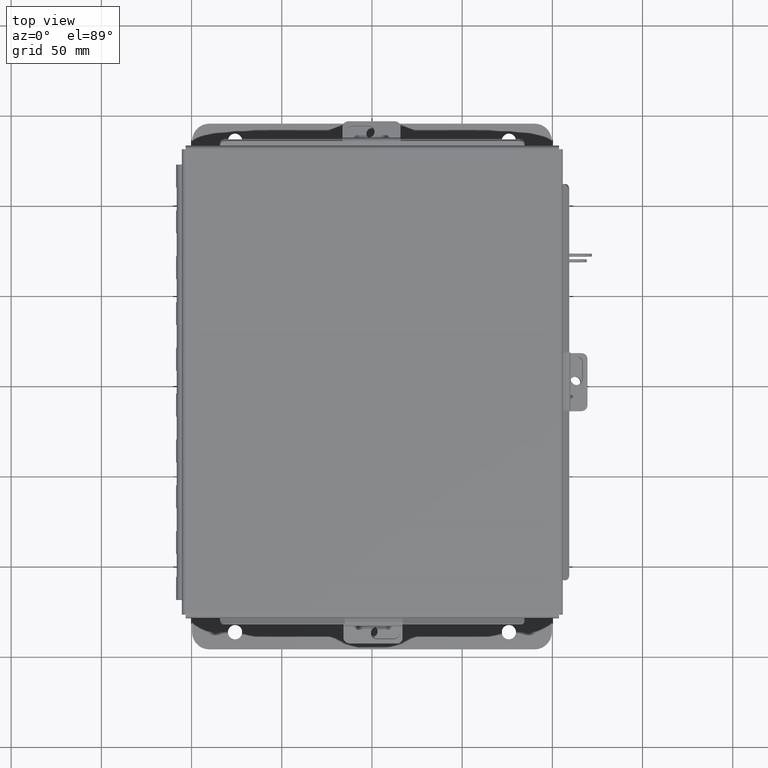
[diagram: clean part render]
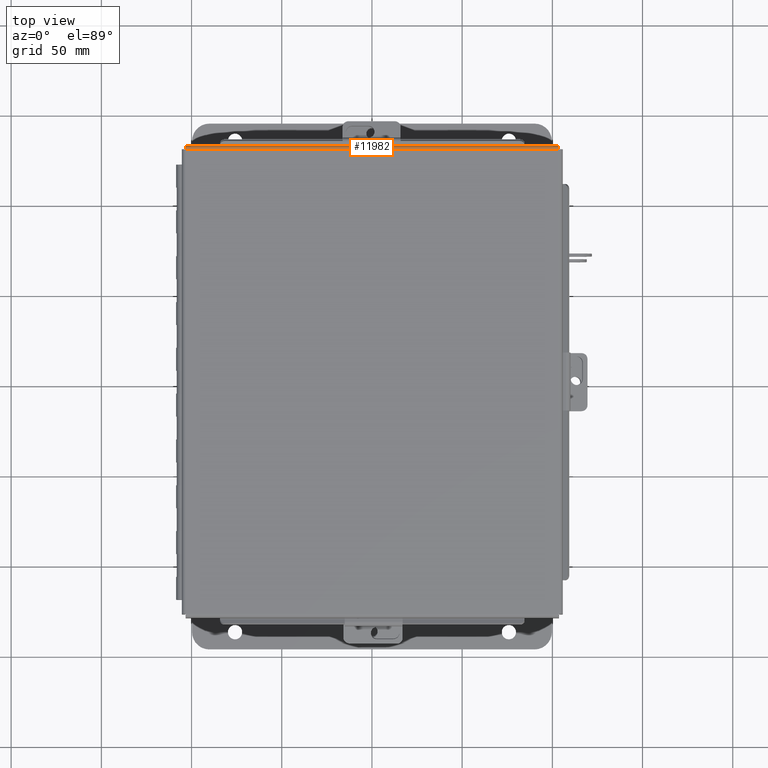
[diagram: same view with one face highlighted and labeled with its STEP entity id]
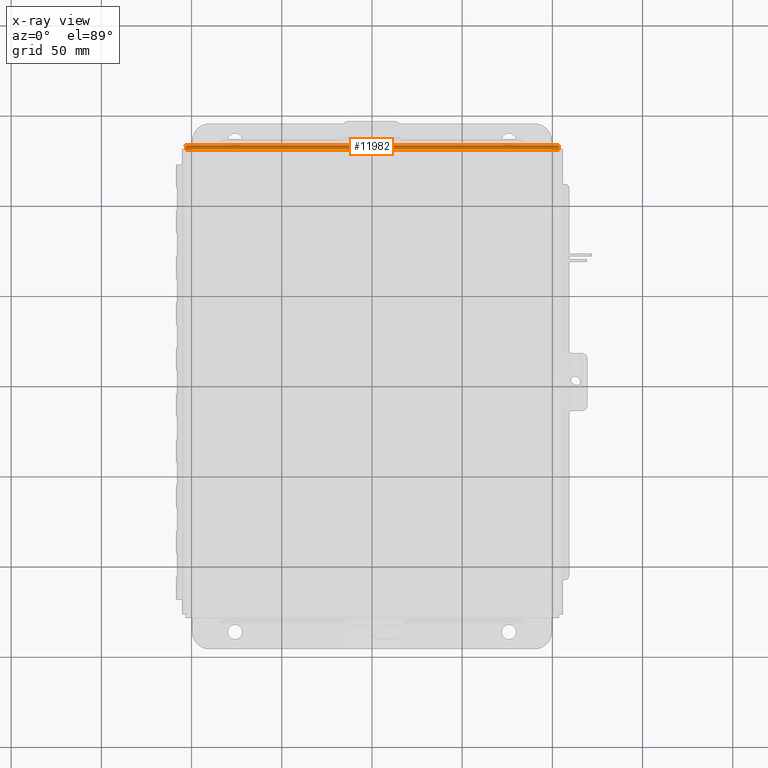
[diagram: x-ray of the same camera — body ghosted, the highlighted face saturated]
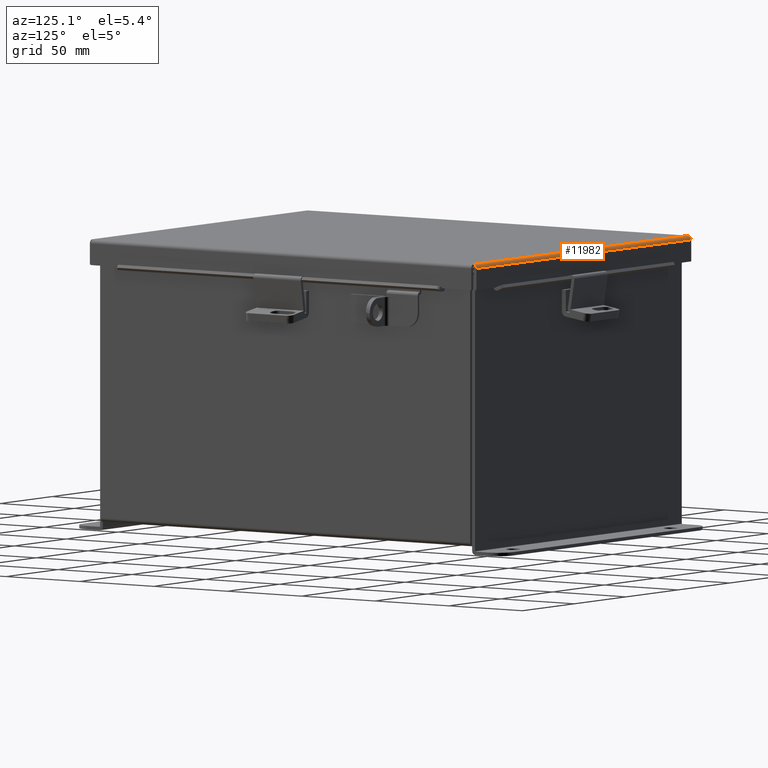
[diagram: same view with one face highlighted and labeled with its STEP entity id]
A machine part, top view. The second image highlights one B-rep face of the part: STEP entity #11982.
The next image is the same camera in x-ray: the body ghosted, the highlighted face saturated — about 0% of this face is hidden behind the body in this view.
A second angle (auxiliary view) of the same face is appended — the face is thin or edge-on in the first view.
In plain terms, the highlighted cylindrical surface (edge-blend (fillet) strip) has radius 2.2276 mm, axis along (1, -0, 0).
Its self-contained STEP definition (entity closure, byte-faithful):
#203 = ORIENTED_EDGE ( 'NONE', *, *, #1217, .F. ) ;
#292 = CARTESIAN_POINT ( 'NONE',  ( -4.074478932188135600, 5.068549999999998300, -0.07469999999999993300 ) ) ;
#777 = CARTESIAN_POINT ( 'NONE',  ( 4.068550000000000100, 5.068549999999998300, -0.07470000000000022500 ) ) ;
#1088 = CARTESIAN_POINT ( 'NONE',  ( 4.072008543776411700, 5.138680782078321100, -0.04089574734180011200 ) ) ;
#1217 = EDGE_CURVE ( 'NONE', #4258, #11282, #6388, .T. ) ;
#1588 = DIRECTION ( 'NONE',  ( 1.000000000000000000, 0.0000000000000000000, 0.0000000000000000000 ) ) ;
#1610 = CYLINDRICAL_SURFACE ( 'NONE', #12042, 0.08770000000000026400 ) ;
#1968 = CARTESIAN_POINT ( 'NONE',  ( 4.068550000000000100, 5.068549999999998300, -0.07470000000000022500 ) ) ;
#2162 = CARTESIAN_POINT ( 'NONE',  ( 4.073490776823446100, 5.153967403743811500, -0.009955289458309054700 ) ) ;
#2438 = EDGE_LOOP ( 'NONE', ( #3299, #5412, #16224, #203 ) ) ;
#2838 = CARTESIAN_POINT ( 'NONE',  ( -4.068550000000000100, 5.068549999999998300, -0.07469999999999993300 ) ) ;
#2987 = CARTESIAN_POINT ( 'NONE',  ( -4.074478932188135600, 5.068549999999998300, 0.01300000000000016400 ) ) ;
#3299 = ORIENTED_EDGE ( 'NONE', *, *, #7926, .F. ) ;
#3550 = CARTESIAN_POINT ( 'NONE',  ( 4.074478932188135600, 5.156249999999999100, 0.01299999999999977400 ) ) ;
#4215 = CARTESIAN_POINT ( 'NONE',  ( 4.074478932188135600, 5.156249999999999100, 0.01299999999999977400 ) ) ;
#4258 = VERTEX_POINT ( 'NONE', #1968 ) ;
#4604 = CARTESIAN_POINT ( 'NONE',  ( -4.072502621458756500, 5.145181066258666100, -0.03116738457852799900 ) ) ;
#4669 = CARTESIAN_POINT ( 'NONE',  ( 4.072502621458756500, 5.145181066258666100, -0.03116738457852800300 ) ) ;
#5412 = ORIENTED_EDGE ( 'NONE', *, *, #8841, .F. ) ;
#5536 = DIRECTION ( 'NONE',  ( -1.000000000000000000, -0.0000000000000000000, -0.0000000000000000000 ) ) ;
#5864 = CARTESIAN_POINT ( 'NONE',  ( -4.071020388411723100, 5.122445747341797300, -0.05713078207832041800 ) ) ;
#5924 = B_SPLINE_CURVE_WITH_KNOTS ( 'NONE', 3,
 ( #9607, #16019, #12233, #4604, #13506, #5864, #14812, #7174, #16084, #8436 ),
 .UNSPECIFIED., .F., .F.,
 ( 4, 2, 2, 2, 4 ),
 ( 0.0000000000000000000, 0.2500000000000000000, 0.5000000000000000000, 0.7500000000000000000, 1.000000000000000000 ),
 .UNSPECIFIED. ) ;
#6145 = CARTESIAN_POINT ( 'NONE',  ( 4.073984854505790800, 5.156249999999999100, 0.001520096845007091700 ) ) ;
#6388 = B_SPLINE_CURVE_WITH_KNOTS ( 'NONE', 3,
 ( #777, #13371, #10775, #9769, #11084, #1088, #4669, #2162, #6145, #3550 ),
 .UNSPECIFIED., .F., .F.,
 ( 4, 2, 2, 2, 4 ),
 ( 0.0000000000000000000, 0.2500000000000000000, 0.5000000000000000000, 0.7500000000000000000, 1.000000000000000000 ),
 .UNSPECIFIED. ) ;
#6531 = CARTESIAN_POINT ( 'NONE',  ( 4.156250000000000900, 5.156249999999999100, 0.01299999999999978100 ) ) ;
#6555 = VERTEX_POINT ( 'NONE', #2838 ) ;
#6819 = DIRECTION ( 'NONE',  ( 0.0000000000000000000, 1.000000000000000000, -4.477801015840783100E-015 ) ) ;
#7122 = LINE ( 'NONE', #292, #16480 ) ;
#7174 = CARTESIAN_POINT ( 'NONE',  ( -4.069538155364689700, 5.091505289458308600, -0.07241740374381121200 ) ) ;
#7797 = DIRECTION ( 'NONE',  ( 1.000000000000000000, -3.684809048101456200E-032, 1.613820990588604100E-046 ) ) ;
#7926 = EDGE_CURVE ( 'NONE', #6555, #4258, #7122, .T. ) ;
#8436 = CARTESIAN_POINT ( 'NONE',  ( -4.068550000000000100, 5.068549999999998300, -0.07469999999999993300 ) ) ;
#8543 = VERTEX_POINT ( 'NONE', #10449 ) ;
#8809 = FACE_OUTER_BOUND ( 'NONE', #2438, .T. ) ;
#8841 = EDGE_CURVE ( 'NONE', #8543, #6555, #5924, .T. ) ;
#9607 = CARTESIAN_POINT ( 'NONE',  ( -4.074478932188135600, 5.156249999999999100, 0.01299999999999978100 ) ) ;
#9769 = CARTESIAN_POINT ( 'NONE',  ( 4.070526310729379200, 5.112717384578525400, -0.06363106625866835100 ) ) ;
#10449 = CARTESIAN_POINT ( 'NONE',  ( -4.074478932188135600, 5.156249999999999100, 0.01299999999999978100 ) ) ;
#10775 = CARTESIAN_POINT ( 'NONE',  ( 4.069538155364689700, 5.091505289458308600, -0.07241740374381121200 ) ) ;
#11084 = CARTESIAN_POINT ( 'NONE',  ( 4.071020388411724000, 5.122445747341799000, -0.05713078207832041800 ) ) ;
#11282 = VERTEX_POINT ( 'NONE', #4215 ) ;
#11982 = ADVANCED_FACE ( 'NONE', ( #8809 ), #1610, .T. ) ;
#12042 = AXIS2_PLACEMENT_3D ( 'NONE', #2987, #5536, #6819 ) ;
#12233 = CARTESIAN_POINT ( 'NONE',  ( -4.073490776823446100, 5.153967403743809700, -0.009955289458309056500 ) ) ;
#12538 = EDGE_CURVE ( 'NONE', #8543, #11282, #13972, .T. ) ;
#13371 = CARTESIAN_POINT ( 'NONE',  ( 4.069044077682346700, 5.080029903154990500, -0.07469999999999994700 ) ) ;
#13506 = CARTESIAN_POINT ( 'NONE',  ( -4.072008543776412600, 5.138680782078319400, -0.04089574734180010500 ) ) ;
#13561 = VECTOR ( 'NONE', #7797, 39.37007874015748100 ) ;
#13972 = LINE ( 'NONE', #6531, #13561 ) ;
#14812 = CARTESIAN_POINT ( 'NONE',  ( -4.070526310729378300, 5.112717384578526300, -0.06363106625866837800 ) ) ;
#16019 = CARTESIAN_POINT ( 'NONE',  ( -4.073984854505790000, 5.156249999999999100, 0.001520096845007091700 ) ) ;
#16084 = CARTESIAN_POINT ( 'NONE',  ( -4.069044077682344900, 5.080029903154990500, -0.07469999999999994700 ) ) ;
#16224 = ORIENTED_EDGE ( 'NONE', *, *, #12538, .T. ) ;
#16480 = VECTOR ( 'NONE', #1588, 39.37007874015748100 ) ;